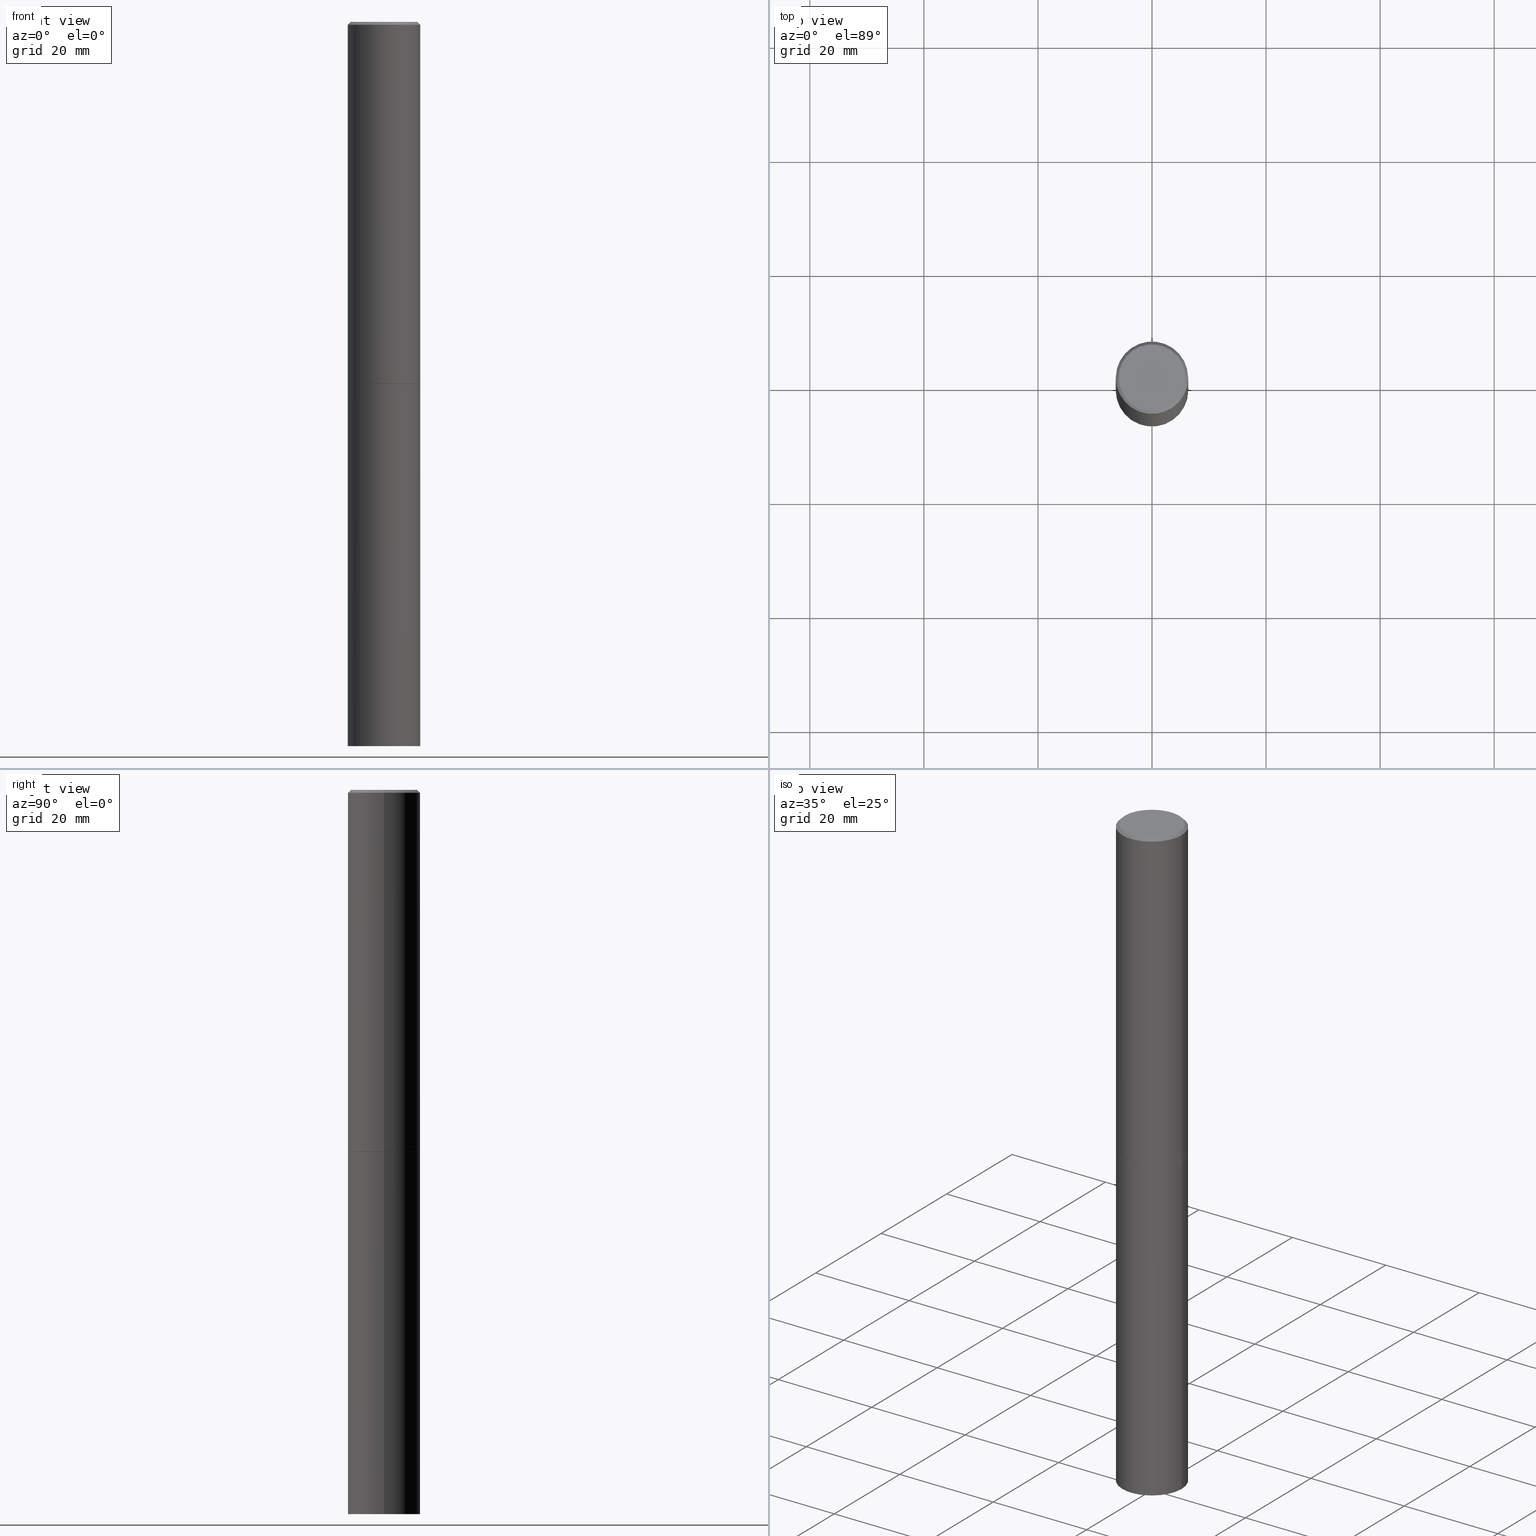
[diagram: canonical four-view strip — front | top / right | iso, engineering-drawing reading convention]
A machine part, canonical four-view strip (front | top / right | iso — engineering-drawing reading convention). The complete STEP part file that produces these views, byte-faithful:
ISO-10303-21;
HEADER;
FILE_DESCRIPTION (( 'STEP AP203' ),
    '1' );
FILE_NAME ('34867.STEP',
    '2024-02-27T18:05:30',
    ( '' ),
    ( '' ),
    'SwSTEP 2.0',
    'SolidWorks 2023',
    '' );
FILE_SCHEMA (( 'CONFIG_CONTROL_DESIGN' ));
ENDSEC;

DATA;
#1 = LENGTH_MEASURE_WITH_UNIT ( LENGTH_MEASURE( 0.02539999999999999897 ), #227 );
#2 = EDGE_CURVE ( 'NONE', #77, #258, #276, .T. ) ;
#3 = ORIENTED_EDGE ( 'NONE', *, *, #361, .T. ) ;
#4 = DIRECTION ( 'NONE',  ( 1.000000000000000000, -6.982962677686266711E-15, 0.000000000000000000 ) ) ;
#5 = CALENDAR_DATE ( 2024, 27, 2 ) ;
#6 = PERSON_AND_ORGANIZATION_ROLE ( 'design_owner' ) ;
#7 = MECHANICAL_CONTEXT ( 'NONE', #55, 'mechanical' ) ;
#8 = EDGE_LOOP ( 'NONE', ( #295, #123, #92, #254 ) ) ;
#9 = PERSON_AND_ORGANIZATION_ROLE ( 'classification_officer' ) ;
#10 = ORIENTED_EDGE ( 'NONE', *, *, #129, .F. ) ;
#11 = SHAPE_DEFINITION_REPRESENTATION ( #36, #97 ) ;
#12 = ORIENTED_EDGE ( 'NONE', *, *, #62, .T. ) ;
#13 = EDGE_LOOP ( 'NONE', ( #3, #164, #63, #143 ) ) ;
#14 = CARTESIAN_POINT ( 'NONE',  ( 0.2500000000000000000, -1.745740669421566678E-15, 1.219044193948983948E-29 ) ) ;
#15 = AXIS2_PLACEMENT_3D ( 'NONE', #191, #306, #73 ) ;
#16 = LINE ( 'NONE', #301, #231 ) ;
#17 = DIRECTION ( 'NONE',  ( -2.445468806185136877E-29, 3.491481338843145188E-15, 1.000000000000000000 ) ) ;
#18 = DIRECTION ( 'NONE',  ( 2.438088387897960049E-29, -3.491481338843145188E-15, -1.000000000000000000 ) ) ;
#19 = DIRECTION ( 'NONE',  ( -2.445468806185136597E-29, 3.491481338843145583E-15, 1.000000000000000000 ) ) ;
#20 = DIRECTION ( 'NONE',  ( 2.438088387897960049E-29, -3.491481338843145188E-15, -1.000000000000000000 ) ) ;
#21 = EDGE_CURVE ( 'NONE', #280, #317, #358, .T. ) ;
#22 = EDGE_LOOP ( 'NONE', ( #175, #111, #23, #212 ) ) ;
#23 = ORIENTED_EDGE ( 'NONE', *, *, #328, .F. ) ;
#24 = DIRECTION ( 'NONE',  ( -1.000000000000000000, 6.982962677686266711E-15, 0.000000000000000000 ) ) ;
#25 = CONICAL_SURFACE ( 'NONE', #249, 0.2489999999999999991, 0.7853981633975507526 ) ;
#26 = VECTOR ( 'NONE', #285, 39.37007874015748143 ) ;
#27 = DIRECTION ( 'NONE',  ( -2.445468806185136597E-29, 3.491481338843145583E-15, 1.000000000000000000 ) ) ;
#28 = CYLINDRICAL_SURFACE ( 'NONE', #303, 0.2500000000000000000 ) ;
#29 = CALENDAR_DATE ( 2024, 27, 2 ) ;
#30 = ADVANCED_FACE ( 'NONE', ( #127 ), #268, .T. ) ;
#31 = VECTOR ( 'NONE', #299, 39.37007874015748143 ) ;
#32 = APPROVAL_PERSON_ORGANIZATION ( #177, #41, #203 ) ;
#33 = ORIENTED_EDGE ( 'NONE', *, *, #62, .F. ) ;
#34 = PERSON_AND_ORGANIZATION ( #144, #137 ) ;
#35 = ORIENTED_EDGE ( 'NONE', *, *, #323, .T. ) ;
#36 = PRODUCT_DEFINITION_SHAPE ( 'NONE', 'NONE',  #76 ) ;
#37 = COORDINATED_UNIVERSAL_TIME_OFFSET ( 5, 0, .BEHIND. ) ;
#38 = VERTEX_POINT ( 'NONE', #54 ) ;
#39 = PRODUCT ( '34867', '34867', '', ( #7 ) ) ;
#40 = AXIS2_PLACEMENT_3D ( 'NONE', #253, #362, #198 ) ;
#41 = APPROVAL ( #290, 'UNSPECIFIED' ) ;
#42 = DIRECTION ( 'NONE',  ( 2.445468806185136597E-29, -3.491481338843145583E-15, -1.000000000000000000 ) ) ;
#43 = DIRECTION ( 'NONE',  ( 1.000000000000000000, -6.982962677686262766E-15, 0.000000000000000000 ) ) ;
#44 = DIRECTION ( 'NONE',  ( -2.445468806185136597E-29, 3.491481338843145583E-15, 1.000000000000000000 ) ) ;
#45 = CARTESIAN_POINT ( 'NONE',  ( -0.2499999999999997224, 1.675911042644701605E-15, -0.02000000000000005593 ) ) ;
#46 = EDGE_CURVE ( 'NONE', #293, #181, #170, .T. ) ;
#47 = CARTESIAN_POINT ( 'NONE',  ( 4.890937612370287172E-31, -6.982962677686310098E-17, -0.02000000000000005593 ) ) ;
#48 = CARTESIAN_POINT ( 'NONE',  ( 6.113672015462842613E-29, -8.728703347107864943E-15, -2.500000000000000000 ) ) ;
#49 = CARTESIAN_POINT ( 'NONE',  ( 0.2500000000000000000, -1.920314736363729656E-14, -5.000000000000000000 ) ) ;
#50 = CC_DESIGN_APPROVAL ( #167, ( #332 ) ) ;
#51 = DIRECTION ( 'NONE',  ( 1.000000000000000000, -6.982962677686266711E-15, 0.000000000000000000 ) ) ;
#52 = EDGE_LOOP ( 'NONE', ( #344, #291, #337, #270 ) ) ;
#53 = CARTESIAN_POINT ( 'NONE',  ( 1.745740669421627617E-15, 0.2499999999999912570, -2.500000000000001332 ) ) ;
#54 = CARTESIAN_POINT ( 'NONE',  ( -0.2500000000000000000, -1.131669818126154695E-14, -2.500000000000000000 ) ) ;
#55 = APPLICATION_CONTEXT ( 'configuration controlled 3d designs of mechanical parts and assemblies' ) ;
#56 = EDGE_CURVE ( 'NONE', #241, #293, #308, .T. ) ;
#57 = ADVANCED_FACE ( 'NONE', ( #158 ), #190, .T. ) ;
#58 = DIRECTION ( 'NONE',  ( -1.000000000000000000, 6.982962677686265922E-15, -4.876176775795935793E-29 ) ) ;
#59 = DIRECTION ( 'NONE',  ( 1.000000000000000000, 0.000000000000000000, 0.000000000000000000 ) ) ;
#60 = ADVANCED_FACE ( 'NONE', ( #157 ), #25, .T. ) ;
#61 = APPROVAL_ROLE ( '' ) ;
#62 = EDGE_CURVE ( 'NONE', #38, #181, #294, .T. ) ;
#63 = ORIENTED_EDGE ( 'NONE', *, *, #192, .F. ) ;
#64 = CONICAL_SURFACE ( 'NONE', #259, 0.2499999999999997224, 0.7853981633974473908 ) ;
#65 = MANIFOLD_SOLID_BREP ( 'Body-Move/Copy2[1]', #225 ) ;
#66 = ORIENTED_EDGE ( 'NONE', *, *, #2, .F. ) ;
#67 = PERSON_AND_ORGANIZATION ( #144, #137 ) ;
#68 = CARTESIAN_POINT ( 'NONE',  ( -1.043851414335219820E-46, 1.490343170380447200E-32, 4.268512490100411279E-18 ) ) ;
#69 = EDGE_CURVE ( 'NONE', #258, #77, #82, .T. ) ;
#70 = APPLICATION_PROTOCOL_DEFINITION ( 'international standard', 'config_control_design', 1994, #352 ) ;
#71 = ORIENTED_EDGE ( 'NONE', *, *, #69, .F. ) ;
#72 = CC_DESIGN_SECURITY_CLASSIFICATION ( #332, ( #194 ) ) ;
#73 = DIRECTION ( 'NONE',  ( 1.000000000000000000, -6.982962677686262766E-15, 0.000000000000000000 ) ) ;
#74 = LINE ( 'NONE', #243, #302 ) ;
#75 = CYLINDRICAL_SURFACE ( 'NONE', #184, 0.2500000000000000000 ) ;
#76 = PRODUCT_DEFINITION ( 'UNKNOWN', '', #194, #286 ) ;
#77 = VERTEX_POINT ( 'NONE', #304 ) ;
#78 = AXIS2_PLACEMENT_3D ( 'NONE', #342, #264, #59 ) ;
#79 = FACE_OUTER_BOUND ( 'NONE', #13, .T. ) ;
#80 = FACE_OUTER_BOUND ( 'NONE', #52, .T. ) ;
#81 = FACE_OUTER_BOUND ( 'NONE', #93, .T. ) ;
#82 = CIRCLE ( 'NONE', #256, 0.2489999999999999991 ) ;
#83 = DIRECTION ( 'NONE',  ( -2.445468806185136597E-29, 3.491481338843145583E-15, 1.000000000000000000 ) ) ;
#84 = CC_DESIGN_APPROVAL ( #41, ( #194 ) ) ;
#85 = ORIENTED_EDGE ( 'NONE', *, *, #192, .T. ) ;
#86 = DIRECTION ( 'NONE',  ( 2.445468806185136597E-29, -3.491481338843145583E-15, -1.000000000000000000 ) ) ;
#87 = PLANE ( 'NONE',  #172 ) ;
#88 = AXIS2_PLACEMENT_3D ( 'NONE', #130, #44, #218 ) ;
#89 = AXIS2_PLACEMENT_3D ( 'NONE', #142, #166, #279 ) ;
#90 = DATE_TIME_ROLE ( 'creation_date' ) ;
#91 = PERSON_AND_ORGANIZATION_ROLE ( 'creator' ) ;
#92 = ORIENTED_EDGE ( 'NONE', *, *, #199, .T. ) ;
#93 = EDGE_LOOP ( 'NONE', ( #120, #178 ) ) ;
#94 = DATE_AND_TIME ( #5, #113 ) ;
#95 = EDGE_LOOP ( 'NONE', ( #312, #238, #210, #263 ) ) ;
#96 = ADVANCED_FACE ( 'NONE', ( #156 ), #247, .F. ) ;
#97 = ADVANCED_BREP_SHAPE_REPRESENTATION ( '34867', ( #65, #319, #78 ), #296 ) ;
#98 = CARTESIAN_POINT ( 'NONE',  ( 4.890937612370287172E-31, -6.982962677686310098E-17, -0.02000000000000005593 ) ) ;
#99 = DIRECTION ( 'NONE',  ( 0.7071067811866199593, -2.468850131083015945E-15, 0.7071067811864750752 ) ) ;
#100 = AXIS2_PLACEMENT_3D ( 'NONE', #339, #322, #235 ) ;
#101 = AXIS2_PLACEMENT_3D ( 'NONE', #47, #248, #357 ) ;
#102 = EDGE_CURVE ( 'NONE', #77, #229, #74, .T. ) ;
#103 = CARTESIAN_POINT ( 'NONE',  ( 0.2500000000000000000, -1.047444401652943162E-14, -2.500000000000000000 ) ) ;
#104 = DIRECTION ( 'NONE',  ( -2.445468806185136597E-29, 3.491481338843145583E-15, 1.000000000000000000 ) ) ;
#105 = DIRECTION ( 'NONE',  ( 1.000000000000000000, -6.982962677686270655E-15, 0.000000000000000000 ) ) ;
#106 = ADVANCED_FACE ( 'NONE', ( #79 ), #75, .T. ) ;
#107 = LOCAL_TIME ( 13, 5, 30.00000000000000000, #211 ) ;
#108 = CARTESIAN_POINT ( 'NONE',  ( 6.113672015462842613E-29, -8.728703347107864943E-15, -2.500000000000000000 ) ) ;
#109 = DIRECTION ( 'NONE',  ( 1.000000000000000000, -6.982962677686266711E-15, 4.876176775795935793E-29 ) ) ;
#110 = FACE_OUTER_BOUND ( 'NONE', #348, .T. ) ;
#111 = ORIENTED_EDGE ( 'NONE', *, *, #102, .T. ) ;
#112 = LINE ( 'NONE', #281, #125 ) ;
#113 = LOCAL_TIME ( 13, 5, 30.00000000000000000, #204 ) ;
#114 =( CONVERSION_BASED_UNIT ( 'INCH', #1 ) LENGTH_UNIT ( ) NAMED_UNIT ( #165 ) );
#115 = ORIENTED_EDGE ( 'NONE', *, *, #122, .F. ) ;
#116 = CARTESIAN_POINT ( 'NONE',  ( -0.2499999999999998612, 1.776356839400249479E-15, -1.229733772563725745E-29 ) ) ;
#117 = CIRCLE ( 'NONE', #326, 0.2500000000000000000 ) ;
#118 = AXIS2_PLACEMENT_3D ( 'NONE', #195, #338, #334 ) ;
#119 = PERSON_AND_ORGANIZATION_ROLE ( 'creator' ) ;
#120 = ORIENTED_EDGE ( 'NONE', *, *, #361, .F. ) ;
#121 = COORDINATED_UNIVERSAL_TIME_OFFSET ( 5, 0, .BEHIND. ) ;
#122 = EDGE_CURVE ( 'NONE', #317, #280, #141, .T. ) ;
#123 = ORIENTED_EDGE ( 'NONE', *, *, #219, .T. ) ;
#124 = AXIS2_PLACEMENT_3D ( 'NONE', #355, #19, #351 ) ;
#125 = VECTOR ( 'NONE', #173, 39.37007874015748143 ) ;
#126 = EDGE_CURVE ( 'NONE', #258, #208, #272, .T. ) ;
#127 = FACE_OUTER_BOUND ( 'NONE', #183, .T. ) ;
#128 = DIRECTION ( 'NONE',  ( -1.000000000000000000, 6.982962677686266711E-15, 0.000000000000000000 ) ) ;
#129 = EDGE_CURVE ( 'NONE', #241, #38, #16, .T. ) ;
#130 = CARTESIAN_POINT ( 'NONE',  ( 0.000000000000000000, 0.000000000000000000, 0.000000000000000000 ) ) ;
#131 = CC_DESIGN_DATE_AND_TIME_ASSIGNMENT ( #94, #90, ( #76 ) ) ;
#132 = DIRECTION ( 'NONE',  ( -2.445468806185136877E-29, 3.491481338843145188E-15, 1.000000000000000000 ) ) ;
#133 = DIRECTION ( 'NONE',  ( -2.445468806185136597E-29, 3.491481338843145583E-15, 1.000000000000000000 ) ) ;
#134 = DIRECTION ( 'NONE',  ( -0.7071067811866199593, 7.493145998870616062E-15, 0.7071067811864750752 ) ) ;
#135 = ADVANCED_FACE ( 'NONE', ( #214 ), #244, .T. ) ;
#136 = AXIS2_PLACEMENT_3D ( 'NONE', #160, #18, #297 ) ;
#137 = ORGANIZATION ( 'UNSPECIFIED', 'UNSPECIFIED', '' ) ;
#138 = PLANE ( 'NONE',  #118 ) ;
#139 = CARTESIAN_POINT ( 'NONE',  ( 4.890937612370287172E-31, -6.982962677686310098E-17, -0.02000000000000005593 ) ) ;
#140 = LINE ( 'NONE', #336, #26 ) ;
#141 = CIRCLE ( 'NONE', #345, 0.2299999999999997047 ) ;
#142 = CARTESIAN_POINT ( 'NONE',  ( 1.222734403092568523E-28, -1.745740669421572989E-14, -5.000000000000000000 ) ) ;
#143 = ORIENTED_EDGE ( 'NONE', *, *, #46, .F. ) ;
#144 = PERSON ( 'UNSPECIFIED', 'UNSPECIFIED', 'UNSPECIFIED', ('UNSPECIFIED'), ('UNSPECIFIED'), ('UNSPECIFIED') ) ;
#145 = CC_DESIGN_DATE_AND_TIME_ASSIGNMENT ( #321, #146, ( #332 ) ) ;
#146 = DATE_TIME_ROLE ( 'classification_date' ) ;
#147 = LOCAL_TIME ( 13, 5, 30.00000000000000000, #262 ) ;
#148 = PERSON_AND_ORGANIZATION ( #144, #137 ) ;
#149 = EDGE_LOOP ( 'NONE', ( #150, #35, #278, #197 ) ) ;
#150 = ORIENTED_EDGE ( 'NONE', *, *, #328, .T. ) ;
#151 = DATE_AND_TIME ( #240, #313 ) ;
#152 = VERTEX_POINT ( 'NONE', #45 ) ;
#153 = CIRCLE ( 'NONE', #40, 0.2500000000000000000 ) ;
#154 = ORIENTED_EDGE ( 'NONE', *, *, #219, .F. ) ;
#155 = DIRECTION ( 'NONE',  ( 1.000000000000000000, -6.982962677686266711E-15, 4.876176775795935793E-29 ) ) ;
#156 = FACE_OUTER_BOUND ( 'NONE', #363, .T. ) ;
#157 = FACE_OUTER_BOUND ( 'NONE', #22, .T. ) ;
#158 = FACE_OUTER_BOUND ( 'NONE', #149, .T. ) ;
#159 = UNCERTAINTY_MEASURE_WITH_UNIT (LENGTH_MEASURE( 1.000000000000000082E-05 ), #114, 'distance_accuracy_value', 'NONE');
#160 = CARTESIAN_POINT ( 'NONE',  ( 1.606081415867839095E-15, 0.2299999999999997047, -8.009064516888722925E-16 ) ) ;
#161 = CIRCLE ( 'NONE', #101, 0.2499999999999997224 ) ;
#162 = CARTESIAN_POINT ( 'NONE',  ( 0.2500000000000000000, -1.047095253519058861E-14, -2.499000000000000110 ) ) ;
#163 = EDGE_CURVE ( 'NONE', #208, #205, #327, .T. ) ;
#164 = ORIENTED_EDGE ( 'NONE', *, *, #129, .T. ) ;
#165 = DIMENSIONAL_EXPONENTS ( 1.000000000000000000, 0.000000000000000000, 0.000000000000000000, 0.000000000000000000, 0.000000000000000000, 0.000000000000000000, 0.000000000000000000 ) ;
#166 = DIRECTION ( 'NONE',  ( -2.445468806185136597E-29, 3.491481338843145583E-15, 1.000000000000000000 ) ) ;
#167 = APPROVAL ( #180, 'UNSPECIFIED' ) ;
#168 = ORIENTED_EDGE ( 'NONE', *, *, #21, .T. ) ;
#169 = CARTESIAN_POINT ( 'NONE',  ( 6.111226546656657010E-29, -8.725211865769021935E-15, -2.499000000000000110 ) ) ;
#170 = LINE ( 'NONE', #14, #31 ) ;
#171 =( NAMED_UNIT ( * ) PLANE_ANGLE_UNIT ( ) SI_UNIT ( $, .RADIAN. ) );
#172 = AXIS2_PLACEMENT_3D ( 'NONE', #255, #287, #251 ) ;
#173 = DIRECTION ( 'NONE',  ( -0.7071067811865469066, 2.468850131082250355E-15, -0.7071067811865481278 ) ) ;
#174 = CALENDAR_DATE ( 2024, 27, 2 ) ;
#175 = ORIENTED_EDGE ( 'NONE', *, *, #69, .T. ) ;
#176 = CONICAL_SURFACE ( 'NONE', #15, 0.2489999999999999991, 0.7853981633975507526 ) ;
#177 = PERSON_AND_ORGANIZATION ( #144, #137 ) ;
#178 = ORIENTED_EDGE ( 'NONE', *, *, #56, .F. ) ;
#179 = APPROVAL ( #341, 'UNSPECIFIED' ) ;
#180 = APPROVAL_STATUS ( 'not_yet_approved' ) ;
#181 = VERTEX_POINT ( 'NONE', #103 ) ;
#182 = CALENDAR_DATE ( 2024, 27, 2 ) ;
#183 = EDGE_LOOP ( 'NONE', ( #154, #115, #222, #282 ) ) ;
#184 = AXIS2_PLACEMENT_3D ( 'NONE', #275, #273, #155 ) ;
#185 = CC_DESIGN_APPROVAL ( #179, ( #76 ) ) ;
#186 = CC_DESIGN_PERSON_AND_ORGANIZATION_ASSIGNMENT ( #209, #119, ( #194 ) ) ;
#187 = DIRECTION ( 'NONE',  ( 1.000000000000000000, -6.982962677686262766E-15, 0.000000000000000000 ) ) ;
#188 = CARTESIAN_POINT ( 'NONE',  ( -1.043851414335219820E-46, 1.490343170380447200E-32, 4.268512490100411279E-18 ) ) ;
#189 = DIRECTION ( 'NONE',  ( 1.000000000000000000, -6.982962677686266711E-15, 4.876176775795935793E-29 ) ) ;
#190 = CYLINDRICAL_SURFACE ( 'NONE', #88, 0.2499999999999998612 ) ;
#191 = CARTESIAN_POINT ( 'NONE',  ( 6.113672015462842613E-29, -8.728703347107864943E-15, -2.500000000000000000 ) ) ;
#192 = EDGE_CURVE ( 'NONE', #181, #38, #117, .T. ) ;
#193 = LINE ( 'NONE', #116, #359 ) ;
#194 = PRODUCT_DEFINITION_FORMATION_WITH_SPECIFIED_SOURCE ( 'ANY', '', #39, .NOT_KNOWN. ) ;
#195 = CARTESIAN_POINT ( 'NONE',  ( 6.113672015462842613E-29, -8.728703347107864943E-15, -2.500000000000000000 ) ) ;
#196 = CARTESIAN_POINT ( 'NONE',  ( -0.2299999999999997047, 1.640996229256270547E-15, 4.268512490089056766E-18 ) ) ;
#197 = ORIENTED_EDGE ( 'NONE', *, *, #163, .F. ) ;
#198 = DIRECTION ( 'NONE',  ( 1.000000000000000000, -6.982962677686266711E-15, 0.000000000000000000 ) ) ;
#199 = EDGE_CURVE ( 'NONE', #205, #152, #161, .T. ) ;
#200 = AXIS2_PLACEMENT_3D ( 'NONE', #215, #333, #105 ) ;
#201 = DIRECTION ( 'NONE',  ( -2.445468806185136597E-29, 3.491481338843145583E-15, 1.000000000000000000 ) ) ;
#202 = AXIS2_PLACEMENT_3D ( 'NONE', #53, #20, #58 ) ;
#203 = APPROVAL_ROLE ( '' ) ;
#204 = COORDINATED_UNIVERSAL_TIME_OFFSET ( 5, 0, .BEHIND. ) ;
#205 = VERTEX_POINT ( 'NONE', #221 ) ;
#206 = SECURITY_CLASSIFICATION_LEVEL ( 'unclassified' ) ;
#207 = ADVANCED_FACE ( 'NONE', ( #80 ), #176, .T. ) ;
#208 = VERTEX_POINT ( 'NONE', #162 ) ;
#209 = PERSON_AND_ORGANIZATION ( #144, #137 ) ;
#210 = ORIENTED_EDGE ( 'NONE', *, *, #163, .T. ) ;
#211 = COORDINATED_UNIVERSAL_TIME_OFFSET ( 5, 0, .BEHIND. ) ;
#212 = ORIENTED_EDGE ( 'NONE', *, *, #126, .F. ) ;
#213 = CC_DESIGN_PERSON_AND_ORGANIZATION_ASSIGNMENT ( #288, #91, ( #76 ) ) ;
#214 = FACE_OUTER_BOUND ( 'NONE', #95, .T. ) ;
#215 = CARTESIAN_POINT ( 'NONE',  ( 1.222734403092568523E-28, -1.745740669421572989E-14, -5.000000000000000000 ) ) ;
#216 = DIRECTION ( 'NONE',  ( -2.445468806185136597E-29, 3.491481338843145583E-15, 1.000000000000000000 ) ) ;
#217 = ADVANCED_FACE ( 'NONE', ( #81 ), #87, .T. ) ;
#218 = DIRECTION ( 'NONE',  ( 1.000000000000000000, -6.982962677686266711E-15, 4.876176775795935793E-29 ) ) ;
#219 = EDGE_CURVE ( 'NONE', #280, #205, #140, .T. ) ;
#220 = CLOSED_SHELL ( 'NONE', ( #60, #57, #298, #30, #135, #207, #300, #96 ) ) ;
#221 = CARTESIAN_POINT ( 'NONE',  ( 0.2499999999999997224, -1.784954126219744217E-15, -0.02000000000000005593 ) ) ;
#222 = ORIENTED_EDGE ( 'NONE', *, *, #267, .T. ) ;
#223 = FACE_OUTER_BOUND ( 'NONE', #350, .T. ) ;
#224 = CARTESIAN_POINT ( 'NONE',  ( 0.000000000000000000, 0.000000000000000000, 0.000000000000000000 ) ) ;
#225 = CLOSED_SHELL ( 'NONE', ( #106, #217, #305, #283 ) ) ;
#226 = AXIS2_PLACEMENT_3D ( 'NONE', #335, #83, #51 ) ;
#227 =( LENGTH_UNIT ( ) NAMED_UNIT ( * ) SI_UNIT ( $, .METRE. ) );
#228 = CARTESIAN_POINT ( 'NONE',  ( -0.2500000000000000000, -1.131669818126154695E-14, -5.000000000000000000 ) ) ;
#229 = VERTEX_POINT ( 'NONE', #360 ) ;
#230 = VECTOR ( 'NONE', #17, 39.37007874015748143 ) ;
#231 = VECTOR ( 'NONE', #132, 39.37007874015748143 ) ;
#232 = APPROVAL_PERSON_ORGANIZATION ( #67, #167, #292 ) ;
#233 = APPROVAL_DATE_TIME ( #349, #179 ) ;
#234 = EDGE_CURVE ( 'NONE', #229, #208, #239, .T. ) ;
#235 = DIRECTION ( 'NONE',  ( 1.000000000000000000, -6.982962677686262766E-15, 0.000000000000000000 ) ) ;
#236 = DATE_AND_TIME ( #174, #107 ) ;
#237 = AXIS2_PLACEMENT_3D ( 'NONE', #246, #331, #189 ) ;
#238 = ORIENTED_EDGE ( 'NONE', *, *, #234, .T. ) ;
#239 = CIRCLE ( 'NONE', #340, 0.2500000000000000000 ) ;
#240 = CALENDAR_DATE ( 2024, 27, 2 ) ;
#241 = VERTEX_POINT ( 'NONE', #228 ) ;
#242 = PRODUCT_RELATED_PRODUCT_CATEGORY ( 'detail', '', ( #39 ) ) ;
#243 = CARTESIAN_POINT ( 'NONE',  ( -0.2489999999999999991, -6.959451935065215486E-15, -2.500000000000000000 ) ) ;
#244 = CYLINDRICAL_SURFACE ( 'NONE', #237, 0.2499999999999998612 ) ;
#245 = LOCAL_TIME ( 13, 5, 30.00000000000000000, #121 ) ;
#246 = CARTESIAN_POINT ( 'NONE',  ( 0.000000000000000000, 0.000000000000000000, 0.000000000000000000 ) ) ;
#247 = PLANE ( 'NONE',  #136 ) ;
#248 = DIRECTION ( 'NONE',  ( -2.445468806185136597E-29, 3.491481338843145583E-15, 1.000000000000000000 ) ) ;
#249 = AXIS2_PLACEMENT_3D ( 'NONE', #48, #274, #187 ) ;
#250 = CIRCLE ( 'NONE', #89, 0.2500000000000000000 ) ;
#251 = DIRECTION ( 'NONE',  ( -1.000000000000000000, 6.982962677686265922E-15, -4.876176775795935793E-29 ) ) ;
#252 = CC_DESIGN_PERSON_AND_ORGANIZATION_ASSIGNMENT ( #34, #9, ( #332 ) ) ;
#253 = CARTESIAN_POINT ( 'NONE',  ( 6.111226546656657010E-29, -8.725211865769021935E-15, -2.499000000000000110 ) ) ;
#254 = ORIENTED_EDGE ( 'NONE', *, *, #267, .F. ) ;
#255 = CARTESIAN_POINT ( 'NONE',  ( 1.745740669421688754E-15, 0.2499999999999825417, -5.000000000000000888 ) ) ;
#256 = AXIS2_PLACEMENT_3D ( 'NONE', #329, #216, #43 ) ;
#257 = FACE_OUTER_BOUND ( 'NONE', #289, .T. ) ;
#258 = VERTEX_POINT ( 'NONE', #314 ) ;
#259 = AXIS2_PLACEMENT_3D ( 'NONE', #139, #86, #24 ) ;
#260 =( NAMED_UNIT ( * ) SI_UNIT ( $, .STERADIAN. ) SOLID_ANGLE_UNIT ( ) );
#261 = CC_DESIGN_PERSON_AND_ORGANIZATION_ASSIGNMENT ( #343, #315, ( #194 ) ) ;
#262 = COORDINATED_UNIVERSAL_TIME_OFFSET ( 5, 0, .BEHIND. ) ;
#263 = ORIENTED_EDGE ( 'NONE', *, *, #347, .F. ) ;
#264 = DIRECTION ( 'NONE',  ( 0.000000000000000000, 0.000000000000000000, 1.000000000000000000 ) ) ;
#265 = ORIENTED_EDGE ( 'NONE', *, *, #56, .T. ) ;
#266 = APPROVAL_DATE_TIME ( #151, #167 ) ;
#267 = EDGE_CURVE ( 'NONE', #317, #152, #112, .T. ) ;
#268 = CONICAL_SURFACE ( 'NONE', #366, 0.2499999999999997224, 0.7853981633974473908 ) ;
#269 = DIRECTION ( 'NONE',  ( 1.000000000000000000, -6.982962677686266711E-15, 4.876225828469315047E-29 ) ) ;
#270 = ORIENTED_EDGE ( 'NONE', *, *, #234, .F. ) ;
#271 = CARTESIAN_POINT ( 'NONE',  ( 0.2499999999999998612, -1.745740669421565692E-15, 1.219044193948983248E-29 ) ) ;
#272 = LINE ( 'NONE', #354, #353 ) ;
#273 = DIRECTION ( 'NONE',  ( -2.445468806185136597E-29, 3.491481338843145583E-15, 1.000000000000000000 ) ) ;
#274 = DIRECTION ( 'NONE',  ( -2.445468806185136597E-29, 3.491481338843145583E-15, 1.000000000000000000 ) ) ;
#275 = CARTESIAN_POINT ( 'NONE',  ( 0.000000000000000000, 0.000000000000000000, 0.000000000000000000 ) ) ;
#276 = CIRCLE ( 'NONE', #100, 0.2489999999999999991 ) ;
#277 = FACE_OUTER_BOUND ( 'NONE', #8, .T. ) ;
#278 = ORIENTED_EDGE ( 'NONE', *, *, #199, .F. ) ;
#279 = DIRECTION ( 'NONE',  ( 1.000000000000000000, -6.982962677686270655E-15, 0.000000000000000000 ) ) ;
#280 = VERTEX_POINT ( 'NONE', #307 ) ;
#281 = CARTESIAN_POINT ( 'NONE',  ( -0.2499999999999997224, 1.675911042644701605E-15, -0.02000000000000005593 ) ) ;
#282 = ORIENTED_EDGE ( 'NONE', *, *, #347, .T. ) ;
#283 = ADVANCED_FACE ( 'NONE', ( #110 ), #28, .T. ) ;
#284 = APPROVAL_PERSON_ORGANIZATION ( #148, #179, #61 ) ;
#285 = DIRECTION ( 'NONE',  ( 0.7071067811865469066, -7.319954787623254468E-15, -0.7071067811865481278 ) ) ;
#286 = DESIGN_CONTEXT ( 'detailed design', #352, 'design' ) ;
#287 = DIRECTION ( 'NONE',  ( 2.438088387897960049E-29, -3.491481338843145188E-15, -1.000000000000000000 ) ) ;
#288 = PERSON_AND_ORGANIZATION ( #144, #137 ) ;
#289 = EDGE_LOOP ( 'NONE', ( #71, #66 ) ) ;
#290 = APPROVAL_STATUS ( 'not_yet_approved' ) ;
#291 = ORIENTED_EDGE ( 'NONE', *, *, #2, .T. ) ;
#292 = APPROVAL_ROLE ( '' ) ;
#293 = VERTEX_POINT ( 'NONE', #49 ) ;
#294 = CIRCLE ( 'NONE', #124, 0.2500000000000000000 ) ;
#295 = ORIENTED_EDGE ( 'NONE', *, *, #21, .F. ) ;
#296 =( GEOMETRIC_REPRESENTATION_CONTEXT ( 3 ) GLOBAL_UNCERTAINTY_ASSIGNED_CONTEXT ( ( #159 ) ) GLOBAL_UNIT_ASSIGNED_CONTEXT ( ( #114, #171, #260 ) ) REPRESENTATION_CONTEXT ( 'NONE', 'WORKASPACE' ) );
#297 = DIRECTION ( 'NONE',  ( -1.000000000000000000, 6.982962677686265922E-15, -4.876176775795935793E-29 ) ) ;
#298 = ADVANCED_FACE ( 'NONE', ( #277 ), #64, .T. ) ;
#299 = DIRECTION ( 'NONE',  ( -2.445468806185136877E-29, 3.491481338843145188E-15, 1.000000000000000000 ) ) ;
#300 = ADVANCED_FACE ( 'NONE', ( #257 ), #138, .F. ) ;
#301 = CARTESIAN_POINT ( 'NONE',  ( -0.2500000000000000000, 1.776356839400250465E-15, -1.229733772563726445E-29 ) ) ;
#302 = VECTOR ( 'NONE', #134, 39.37007874015748143 ) ;
#303 = AXIS2_PLACEMENT_3D ( 'NONE', #224, #365, #109 ) ;
#304 = CARTESIAN_POINT ( 'NONE',  ( -0.2489999999999999991, -6.954153480716993873E-15, -2.500000000000000000 ) ) ;
#305 = ADVANCED_FACE ( 'NONE', ( #223 ), #310, .F. ) ;
#306 = DIRECTION ( 'NONE',  ( -2.445468806185136597E-29, 3.491481338843145583E-15, 1.000000000000000000 ) ) ;
#307 = CARTESIAN_POINT ( 'NONE',  ( 0.2299999999999997047, -1.681434332853597236E-15, 4.268512490111905999E-18 ) ) ;
#308 = CIRCLE ( 'NONE', #200, 0.2500000000000000000 ) ;
#309 = CIRCLE ( 'NONE', #226, 0.2499999999999997224 ) ;
#310 = PLANE ( 'NONE',  #202 ) ;
#311 = DIRECTION ( 'NONE',  ( -2.445468806185136877E-29, 3.491481338843145188E-15, 1.000000000000000000 ) ) ;
#312 = ORIENTED_EDGE ( 'NONE', *, *, #323, .F. ) ;
#313 = LOCAL_TIME ( 13, 5, 30.00000000000000000, #37 ) ;
#314 = CARTESIAN_POINT ( 'NONE',  ( 0.2489999999999999991, -1.046746105385174403E-14, -2.500000000000000000 ) ) ;
#315 = PERSON_AND_ORGANIZATION_ROLE ( 'design_supplier' ) ;
#316 = APPROVAL_DATE_TIME ( #236, #41 ) ;
#317 = VERTEX_POINT ( 'NONE', #196 ) ;
#318 = AXIS2_PLACEMENT_3D ( 'NONE', #68, #27, #269 ) ;
#319 = MANIFOLD_SOLID_BREP ( 'Body-Move/Copy2[2]', #220 ) ;
#320 = ORIENTED_EDGE ( 'NONE', *, *, #122, .T. ) ;
#321 = DATE_AND_TIME ( #29, #245 ) ;
#322 = DIRECTION ( 'NONE',  ( -2.445468806185136597E-29, 3.491481338843145583E-15, 1.000000000000000000 ) ) ;
#323 = EDGE_CURVE ( 'NONE', #229, #152, #193, .T. ) ;
#324 = PERSON_AND_ORGANIZATION ( #144, #137 ) ;
#325 = ORIENTED_EDGE ( 'NONE', *, *, #46, .T. ) ;
#326 = AXIS2_PLACEMENT_3D ( 'NONE', #108, #133, #356 ) ;
#327 = LINE ( 'NONE', #271, #230 ) ;
#328 = EDGE_CURVE ( 'NONE', #208, #229, #153, .T. ) ;
#329 = CARTESIAN_POINT ( 'NONE',  ( 6.113672015462842613E-29, -8.728703347107864943E-15, -2.500000000000000000 ) ) ;
#330 = DIRECTION ( 'NONE',  ( 1.000000000000000000, -6.982962677686266711E-15, 4.876225828469315047E-29 ) ) ;
#331 = DIRECTION ( 'NONE',  ( -2.445468806185136597E-29, 3.491481338843145583E-15, 1.000000000000000000 ) ) ;
#332 = SECURITY_CLASSIFICATION ( '', '', #206 ) ;
#333 = DIRECTION ( 'NONE',  ( -2.445468806185136597E-29, 3.491481338843145583E-15, 1.000000000000000000 ) ) ;
#334 = DIRECTION ( 'NONE',  ( 1.000000000000000000, -6.982962677686265922E-15, 4.876176775795935793E-29 ) ) ;
#335 = CARTESIAN_POINT ( 'NONE',  ( 4.890937612370287172E-31, -6.982962677686310098E-17, -0.02000000000000005593 ) ) ;
#336 = CARTESIAN_POINT ( 'NONE',  ( 0.2499999999999997224, -1.784954126219744217E-15, -0.02000000000000005593 ) ) ;
#337 = ORIENTED_EDGE ( 'NONE', *, *, #126, .T. ) ;
#338 = DIRECTION ( 'NONE',  ( -2.438088387897960049E-29, 3.491481338843145188E-15, 1.000000000000000000 ) ) ;
#339 = CARTESIAN_POINT ( 'NONE',  ( 6.113672015462842613E-29, -8.728703347107864943E-15, -2.500000000000000000 ) ) ;
#340 = AXIS2_PLACEMENT_3D ( 'NONE', #169, #201, #4 ) ;
#341 = APPROVAL_STATUS ( 'not_yet_approved' ) ;
#342 = CARTESIAN_POINT ( 'NONE',  ( 0.000000000000000000, 0.000000000000000000, 0.000000000000000000 ) ) ;
#343 = PERSON_AND_ORGANIZATION ( #144, #137 ) ;
#344 = ORIENTED_EDGE ( 'NONE', *, *, #102, .F. ) ;
#345 = AXIS2_PLACEMENT_3D ( 'NONE', #188, #104, #330 ) ;
#346 = APPLICATION_PROTOCOL_DEFINITION ( 'international standard', 'config_control_design', 1994, #55 ) ;
#347 = EDGE_CURVE ( 'NONE', #152, #205, #309, .T. ) ;
#348 = EDGE_LOOP ( 'NONE', ( #10, #265, #325, #33 ) ) ;
#349 = DATE_AND_TIME ( #182, #147 ) ;
#350 = EDGE_LOOP ( 'NONE', ( #85, #12 ) ) ;
#351 = DIRECTION ( 'NONE',  ( 1.000000000000000000, -6.982962677686266711E-15, 0.000000000000000000 ) ) ;
#352 = APPLICATION_CONTEXT ( 'configuration controlled 3d designs of mechanical parts and assemblies' ) ;
#353 = VECTOR ( 'NONE', #99, 39.37007874015748143 ) ;
#354 = CARTESIAN_POINT ( 'NONE',  ( 0.2489999999999999991, -1.046746105385174403E-14, -2.500000000000000000 ) ) ;
#355 = CARTESIAN_POINT ( 'NONE',  ( 6.113672015462842613E-29, -8.728703347107864943E-15, -2.500000000000000000 ) ) ;
#356 = DIRECTION ( 'NONE',  ( 1.000000000000000000, -6.982962677686266711E-15, 0.000000000000000000 ) ) ;
#357 = DIRECTION ( 'NONE',  ( 1.000000000000000000, -6.982962677686266711E-15, 0.000000000000000000 ) ) ;
#358 = CIRCLE ( 'NONE', #318, 0.2299999999999997047 ) ;
#359 = VECTOR ( 'NONE', #311, 39.37007874015748143 ) ;
#360 = CARTESIAN_POINT ( 'NONE',  ( -0.2499999999999999722, -2.621163906872689391E-15, -2.499000000000000110 ) ) ;
#361 = EDGE_CURVE ( 'NONE', #293, #241, #250, .T. ) ;
#362 = DIRECTION ( 'NONE',  ( -2.445468806185136597E-29, 3.491481338843145583E-15, 1.000000000000000000 ) ) ;
#363 = EDGE_LOOP ( 'NONE', ( #320, #168 ) ) ;
#364 = CC_DESIGN_PERSON_AND_ORGANIZATION_ASSIGNMENT ( #324, #6, ( #39 ) ) ;
#365 = DIRECTION ( 'NONE',  ( -2.445468806185136597E-29, 3.491481338843145583E-15, 1.000000000000000000 ) ) ;
#366 = AXIS2_PLACEMENT_3D ( 'NONE', #98, #42, #128 ) ;
ENDSEC;
END-ISO-10303-21;
